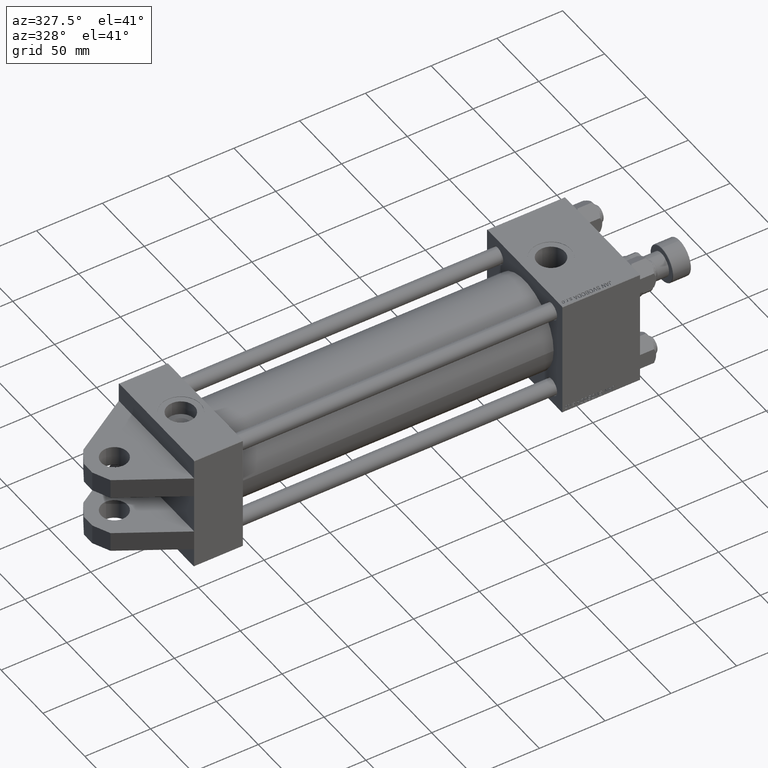
[diagram: clean part render]
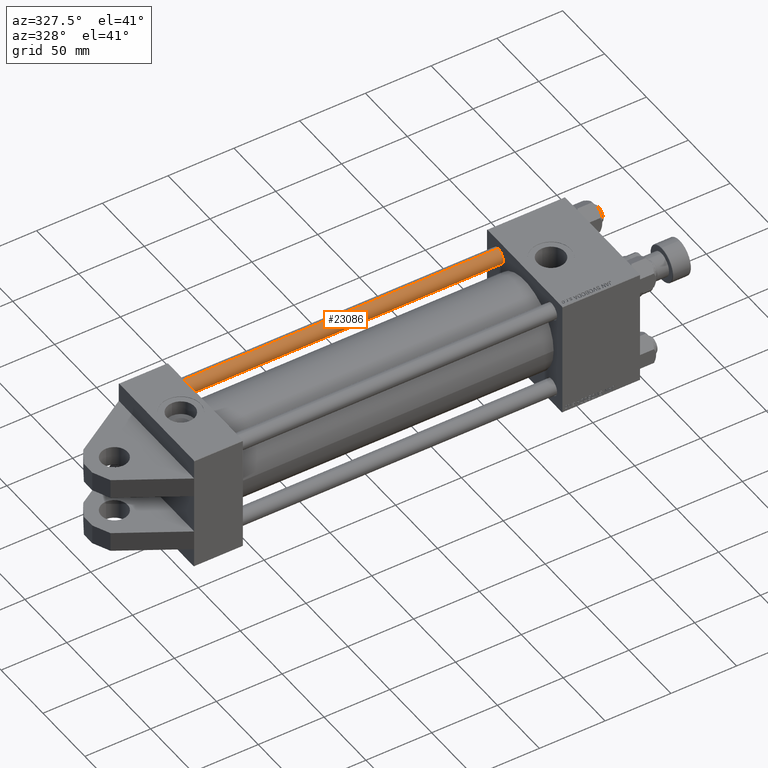
[diagram: same view with one face highlighted and labeled with its STEP entity id]
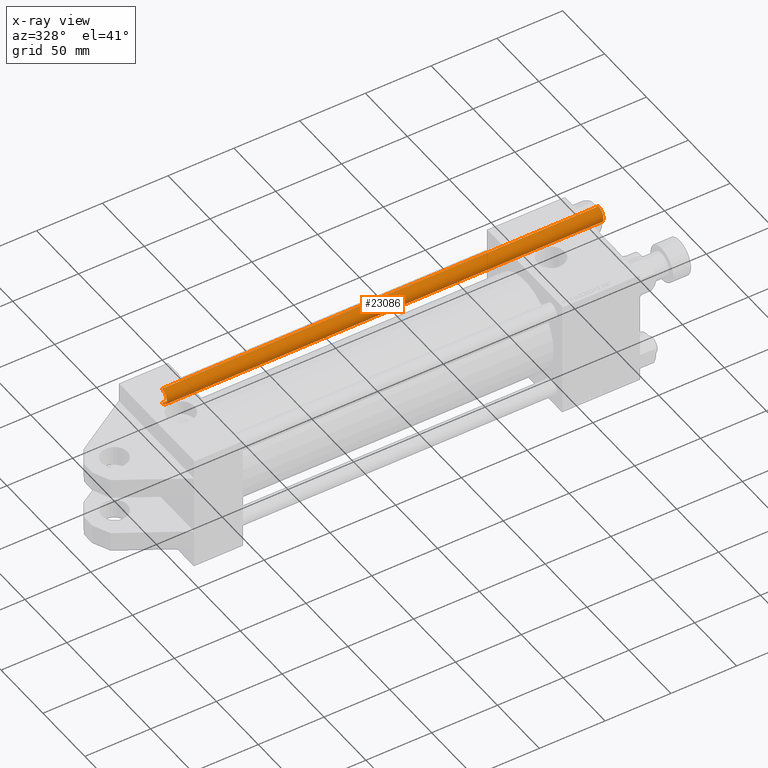
[diagram: x-ray of the same camera — body ghosted, the highlighted face saturated]
A machine part, auxiliary view. The second image highlights one B-rep face of the part: STEP entity #23086.
The next image is the same camera in x-ray: the body ghosted, the highlighted face saturated — about 0% of this face is hidden behind the body in this view.
In plain terms, the highlighted cylindrical surface (edge-blend (fillet) strip) has radius 6 mm, axis along (-1, 0, -0).
Its self-contained STEP definition (entity closure, byte-faithful):
#305 = VERTEX_POINT ( 'NONE', #7281 ) ;
#2789 = DIRECTION ( 'NONE',  ( -0.000000000000000000, -0.000000000000000000, 1.000000000000000000 ) ) ;
#3210 = CARTESIAN_POINT ( 'NONE',  ( 0.000000000000000000, 0.000000000000000000, 333.0000000000000000 ) ) ;
#3945 = EDGE_CURVE ( 'NONE', #20535, #305, #38348, .T. ) ;
#4657 = EDGE_CURVE ( 'NONE', #44385, #20535, #29809, .T. ) ;
#7281 = CARTESIAN_POINT ( 'NONE',  ( 6.000000000000000888, 7.347880794884120722E-16, 0.5000000000000004441 ) ) ;
#9810 = EDGE_CURVE ( 'NONE', #18659, #44385, #9858, .T. ) ;
#9858 = CIRCLE ( 'NONE', #44481, 6.000000000000000888 ) ;
#10281 = ORIENTED_EDGE ( 'NONE', *, *, #48471, .F. ) ;
#12482 = ORIENTED_EDGE ( 'NONE', *, *, #9810, .T. ) ;
#12723 = DIRECTION ( 'NONE',  ( 0.000000000000000000, 0.000000000000000000, -1.000000000000000000 ) ) ;
#16692 = CARTESIAN_POINT ( 'NONE',  ( 6.000000000000000888, 7.347880794884120722E-16, 333.0000000000000000 ) ) ;
#17900 = EDGE_LOOP ( 'NONE', ( #10281, #12482, #45724, #47528 ) ) ;
#17905 = DIRECTION ( 'NONE',  ( -0.000000000000000000, -0.000000000000000000, -1.000000000000000000 ) ) ;
#18659 = VERTEX_POINT ( 'NONE', #39790 ) ;
#20535 = VERTEX_POINT ( 'NONE', #25129 ) ;
#23086 = ADVANCED_FACE ( 'NONE', ( #35229 ), #27301, .T. ) ;
#24106 = DIRECTION ( 'NONE',  ( -0.000000000000000000, -0.000000000000000000, -1.000000000000000000 ) ) ;
#25129 = CARTESIAN_POINT ( 'NONE',  ( -6.000000000000000888, 0.000000000000000000, 0.5000000000000004441 ) ) ;
#27301 = CYLINDRICAL_SURFACE ( 'NONE', #27460, 6.000000000000000888 ) ;
#27460 = AXIS2_PLACEMENT_3D ( 'NONE', #3210, #46572, #47103 ) ;
#28862 = DIRECTION ( 'NONE',  ( 1.000000000000000000, 0.000000000000000000, 0.000000000000000000 ) ) ;
#29809 = LINE ( 'NONE', #37479, #34194 ) ;
#30584 = CARTESIAN_POINT ( 'NONE',  ( 0.000000000000000000, 0.000000000000000000, 0.5000000000000004441 ) ) ;
#34194 = VECTOR ( 'NONE', #17905, 1000.000000000000000 ) ;
#35229 = FACE_OUTER_BOUND ( 'NONE', #17900, .T. ) ;
#37446 = CARTESIAN_POINT ( 'NONE',  ( -6.000000000000000888, 0.000000000000000000, 332.5000000000001137 ) ) ;
#37479 = CARTESIAN_POINT ( 'NONE',  ( -6.000000000000000888, 0.000000000000000000, 333.0000000000000000 ) ) ;
#38348 = CIRCLE ( 'NONE', #42568, 6.000000000000000888 ) ;
#39790 = CARTESIAN_POINT ( 'NONE',  ( 6.000000000000000888, 7.347880794884120722E-16, 332.5000000000001137 ) ) ;
#40746 = CARTESIAN_POINT ( 'NONE',  ( 0.000000000000000000, 0.000000000000000000, 332.5000000000001137 ) ) ;
#42568 = AXIS2_PLACEMENT_3D ( 'NONE', #30584, #2789, #46668 ) ;
#44385 = VERTEX_POINT ( 'NONE', #37446 ) ;
#44443 = LINE ( 'NONE', #16692, #46083 ) ;
#44481 = AXIS2_PLACEMENT_3D ( 'NONE', #40746, #12723, #28862 ) ;
#45724 = ORIENTED_EDGE ( 'NONE', *, *, #4657, .T. ) ;
#46083 = VECTOR ( 'NONE', #24106, 1000.000000000000000 ) ;
#46572 = DIRECTION ( 'NONE',  ( -0.000000000000000000, -0.000000000000000000, -1.000000000000000000 ) ) ;
#46668 = DIRECTION ( 'NONE',  ( 1.000000000000000000, 0.000000000000000000, 0.000000000000000000 ) ) ;
#47103 = DIRECTION ( 'NONE',  ( -1.000000000000000000, 0.000000000000000000, 0.000000000000000000 ) ) ;
#47528 = ORIENTED_EDGE ( 'NONE', *, *, #3945, .T. ) ;
#48471 = EDGE_CURVE ( 'NONE', #18659, #305, #44443, .T. ) ;